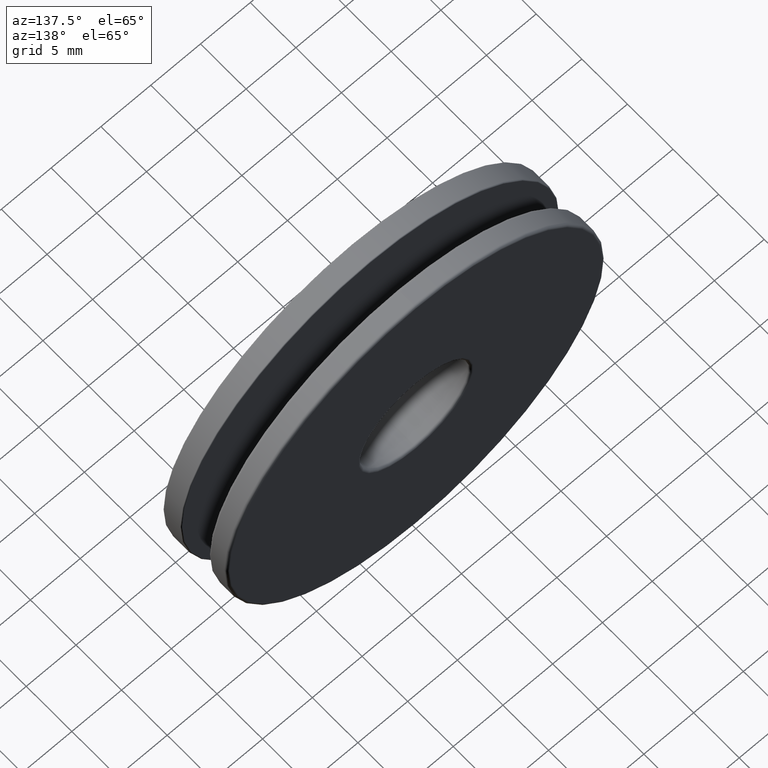
[diagram: clean part render]
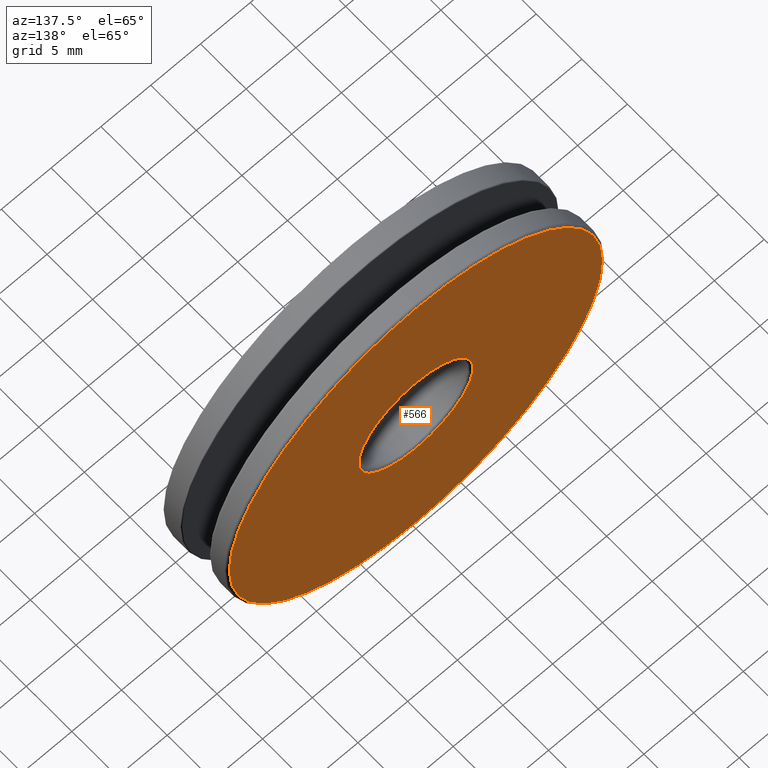
[diagram: same view with one face highlighted and labeled with its STEP entity id]
A machine part, auxiliary view. The second image highlights one B-rep face of the part: STEP entity #566.
In plain terms, the highlighted planar face has unit normal (-0, 1, 0).
Its self-contained STEP definition (entity closure, byte-faithful):
#7 = DIRECTION ( 'NONE',  ( 0.000000000000000000, 1.000000000000000000, 0.000000000000000000 ) ) ;
#71 = EDGE_CURVE ( 'NONE', #358, #358, #630, .T. ) ;
#73 = DIRECTION ( 'NONE',  ( 0.000000000000000000, -1.000000000000000000, -0.000000000000000000 ) ) ;
#101 = AXIS2_PLACEMENT_3D ( 'NONE', #236, #73, #636 ) ;
#116 = ORIENTED_EDGE ( 'NONE', *, *, #71, .T. ) ;
#122 = CIRCLE ( 'NONE', #368, 5.750000000000000000 ) ;
#165 = CARTESIAN_POINT ( 'NONE',  ( 0.000000000000000000, 0.000000000000000000, 0.000000000000000000 ) ) ;
#167 = DIRECTION ( 'NONE',  ( -0.000000000000000000, -1.000000000000000000, -0.000000000000000000 ) ) ;
#236 = CARTESIAN_POINT ( 'NONE',  ( 0.000000000000000000, 0.000000000000000000, 0.000000000000000000 ) ) ;
#276 = AXIS2_PLACEMENT_3D ( 'NONE', #165, #167, #507 ) ;
#285 = DIRECTION ( 'NONE',  ( 0.000000000000000000, 0.000000000000000000, -1.000000000000000000 ) ) ;
#299 = FACE_OUTER_BOUND ( 'NONE', #392, .T. ) ;
#308 = CARTESIAN_POINT ( 'NONE',  ( 0.000000000000000000, 0.000000000000000000, -5.750000000000000000 ) ) ;
#358 = VERTEX_POINT ( 'NONE', #705 ) ;
#368 = AXIS2_PLACEMENT_3D ( 'NONE', #521, #7, #285 ) ;
#375 = FACE_BOUND ( 'NONE', #563, .T. ) ;
#392 = EDGE_LOOP ( 'NONE', ( #116 ) ) ;
#420 = EDGE_CURVE ( 'NONE', #666, #666, #122, .T. ) ;
#467 = PLANE ( 'NONE',  #101 ) ;
#492 = ORIENTED_EDGE ( 'NONE', *, *, #420, .T. ) ;
#507 = DIRECTION ( 'NONE',  ( 0.000000000000000000, 0.000000000000000000, -1.000000000000000000 ) ) ;
#521 = CARTESIAN_POINT ( 'NONE',  ( 0.000000000000000000, 0.000000000000000000, 0.000000000000000000 ) ) ;
#563 = EDGE_LOOP ( 'NONE', ( #492 ) ) ;
#566 = ADVANCED_FACE ( 'NONE', ( #299, #375 ), #467, .T. ) ;
#630 = CIRCLE ( 'NONE', #276, 18.75000000000000000 ) ;
#636 = DIRECTION ( 'NONE',  ( 0.000000000000000000, 0.000000000000000000, -1.000000000000000000 ) ) ;
#666 = VERTEX_POINT ( 'NONE', #308 ) ;
#705 = CARTESIAN_POINT ( 'NONE',  ( 0.000000000000000000, 0.000000000000000000, -18.75000000000000000 ) ) ;